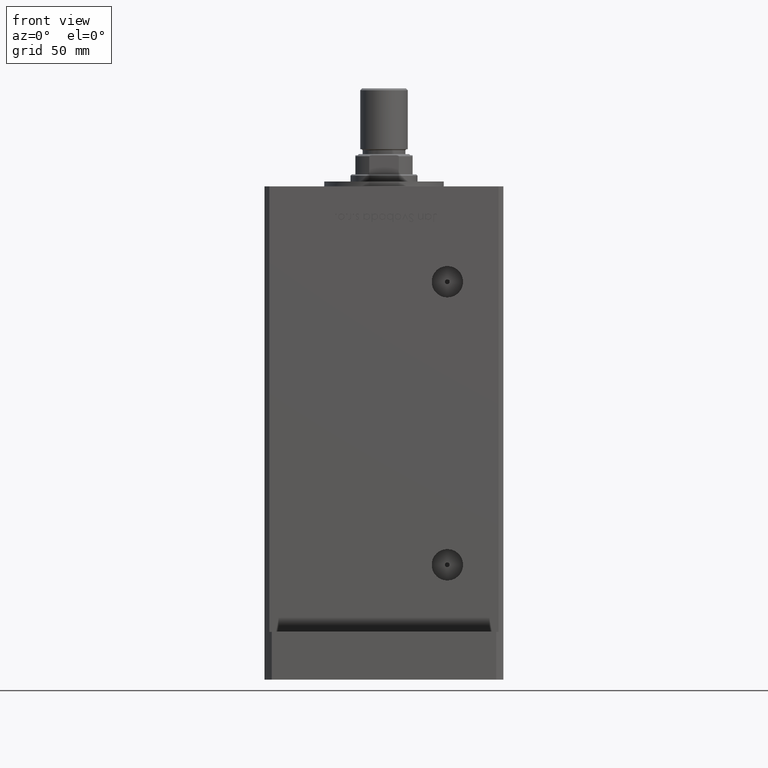
[diagram: clean part render]
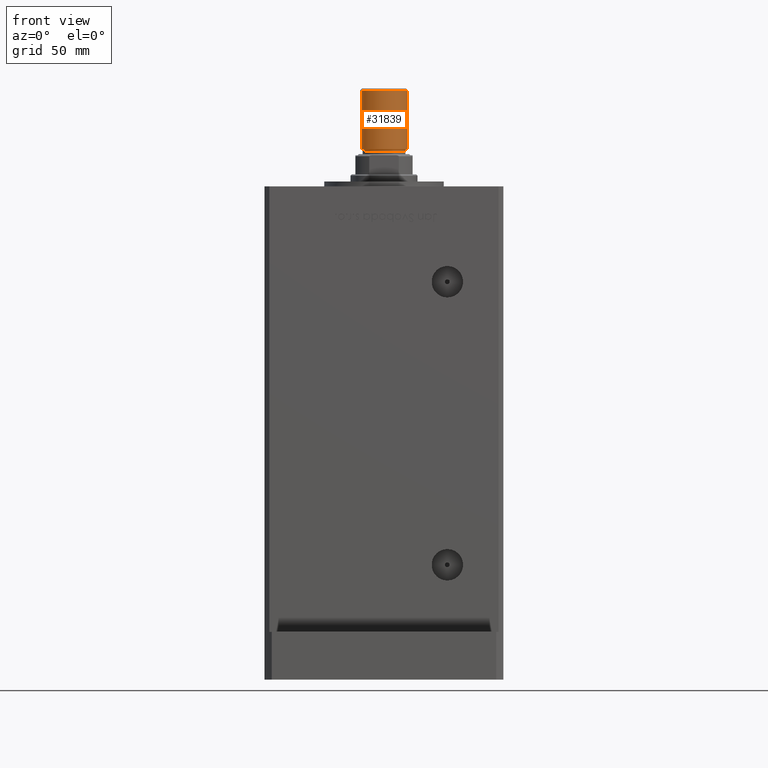
[diagram: same view with one face highlighted and labeled with its STEP entity id]
A machine part, front view. The second image highlights one B-rep face of the part: STEP entity #31839.
In plain terms, the highlighted cylindrical surface (edge-blend (fillet) strip) has radius 10 mm, axis along (0, 0, 1).
Its self-contained STEP definition (entity closure, byte-faithful):
#3516 = DIRECTION ( 'NONE',  ( -0.000000000000000000, -0.000000000000000000, -1.000000000000000000 ) ) ;
#6252 = CARTESIAN_POINT ( 'NONE',  ( 0.000000000000000000, 0.000000000000000000, 0.7999999999999986011 ) ) ;
#7627 = LINE ( 'NONE', #19960, #21491 ) ;
#9118 = CARTESIAN_POINT ( 'NONE',  ( 10.00000000000000000, 1.224646799147353256E-15, 25.50000000000000000 ) ) ;
#10480 = CARTESIAN_POINT ( 'NONE',  ( 10.00000000000000000, 1.224646799147353256E-15, 0.7999999999999986011 ) ) ;
#11001 = ORIENTED_EDGE ( 'NONE', *, *, #17278, .F. ) ;
#11233 = CARTESIAN_POINT ( 'NONE',  ( -10.00000000000000000, 0.000000000000000000, 25.50000000000000000 ) ) ;
#11321 = EDGE_LOOP ( 'NONE', ( #44082, #11001, #45450, #27458 ) ) ;
#16672 = DIRECTION ( 'NONE',  ( 0.000000000000000000, 0.000000000000000000, 1.000000000000000000 ) ) ;
#17278 = EDGE_CURVE ( 'NONE', #52808, #41061, #31764, .T. ) ;
#18613 = CARTESIAN_POINT ( 'NONE',  ( 0.000000000000000000, 0.000000000000000000, 25.50000000000000000 ) ) ;
#19960 = CARTESIAN_POINT ( 'NONE',  ( 10.00000000000000000, 1.224646799147353256E-15, 25.50000000000000000 ) ) ;
#21491 = VECTOR ( 'NONE', #3516, 1000.000000000000000 ) ;
#21621 = EDGE_CURVE ( 'NONE', #25187, #34257, #41532, .T. ) ;
#23527 = DIRECTION ( 'NONE',  ( -0.000000000000000000, -0.000000000000000000, 1.000000000000000000 ) ) ;
#23888 = AXIS2_PLACEMENT_3D ( 'NONE', #41305, #16672, #50057 ) ;
#24776 = CARTESIAN_POINT ( 'NONE',  ( -10.00000000000000000, 0.000000000000000000, 25.50000000000000000 ) ) ;
#25123 = AXIS2_PLACEMENT_3D ( 'NONE', #18613, #30921, #27086 ) ;
#25187 = VERTEX_POINT ( 'NONE', #47198 ) ;
#26817 = FACE_OUTER_BOUND ( 'NONE', #11321, .T. ) ;
#27086 = DIRECTION ( 'NONE',  ( -1.000000000000000000, 0.000000000000000000, 0.000000000000000000 ) ) ;
#27458 = ORIENTED_EDGE ( 'NONE', *, *, #21621, .T. ) ;
#30921 = DIRECTION ( 'NONE',  ( -0.000000000000000000, -0.000000000000000000, -1.000000000000000000 ) ) ;
#31682 = VECTOR ( 'NONE', #50762, 1000.000000000000000 ) ;
#31764 = CIRCLE ( 'NONE', #23888, 10.00000000000000000 ) ;
#31839 = ADVANCED_FACE ( 'NONE', ( #26817 ), #47618, .T. ) ;
#34050 = LINE ( 'NONE', #24776, #31682 ) ;
#34257 = VERTEX_POINT ( 'NONE', #10480 ) ;
#35812 = DIRECTION ( 'NONE',  ( 1.000000000000000000, 0.000000000000000000, 0.000000000000000000 ) ) ;
#36083 = EDGE_CURVE ( 'NONE', #52808, #25187, #34050, .T. ) ;
#38900 = AXIS2_PLACEMENT_3D ( 'NONE', #6252, #23527, #35812 ) ;
#41061 = VERTEX_POINT ( 'NONE', #9118 ) ;
#41305 = CARTESIAN_POINT ( 'NONE',  ( 0.000000000000000000, 0.000000000000000000, 25.50000000000000000 ) ) ;
#41532 = CIRCLE ( 'NONE', #38900, 10.00000000000000000 ) ;
#44082 = ORIENTED_EDGE ( 'NONE', *, *, #44700, .F. ) ;
#44700 = EDGE_CURVE ( 'NONE', #41061, #34257, #7627, .T. ) ;
#45450 = ORIENTED_EDGE ( 'NONE', *, *, #36083, .T. ) ;
#47198 = CARTESIAN_POINT ( 'NONE',  ( -10.00000000000000000, 0.000000000000000000, 0.7999999999999986011 ) ) ;
#47618 = CYLINDRICAL_SURFACE ( 'NONE', #25123, 10.00000000000000000 ) ;
#50057 = DIRECTION ( 'NONE',  ( 1.000000000000000000, 0.000000000000000000, 0.000000000000000000 ) ) ;
#50762 = DIRECTION ( 'NONE',  ( -0.000000000000000000, -0.000000000000000000, -1.000000000000000000 ) ) ;
#52808 = VERTEX_POINT ( 'NONE', #11233 ) ;